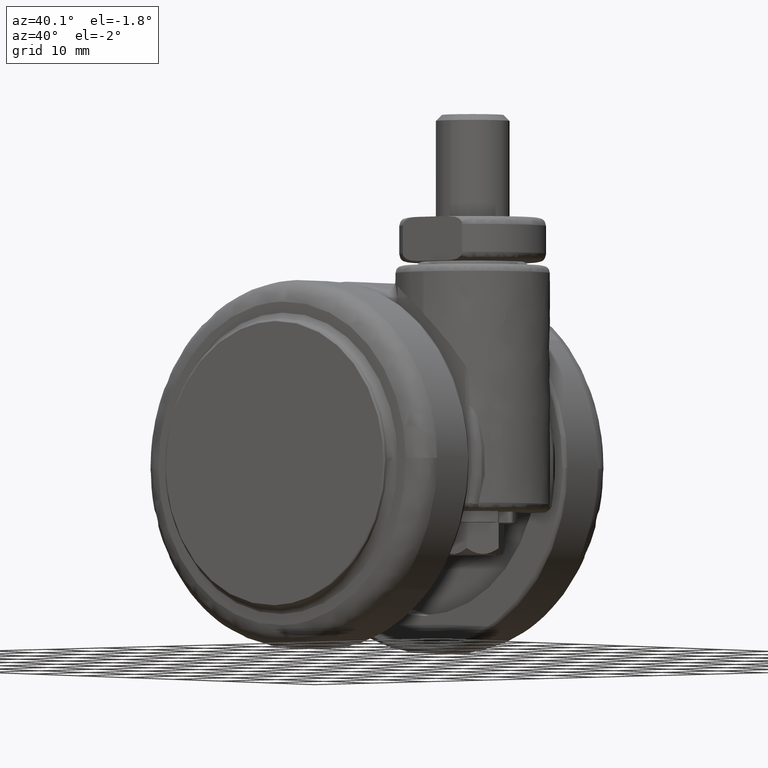
[diagram: clean part render]
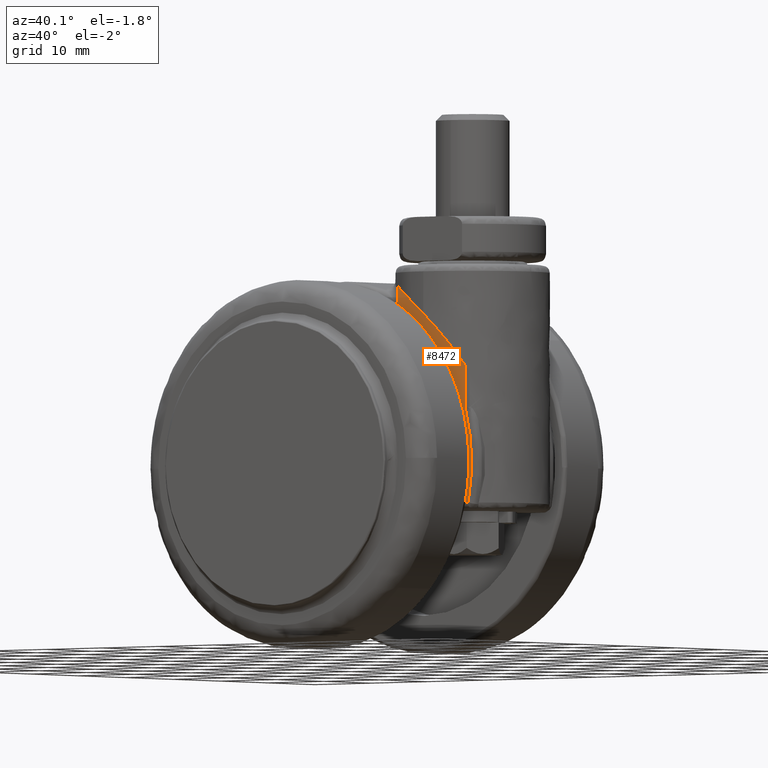
[diagram: same view with one face highlighted and labeled with its STEP entity id]
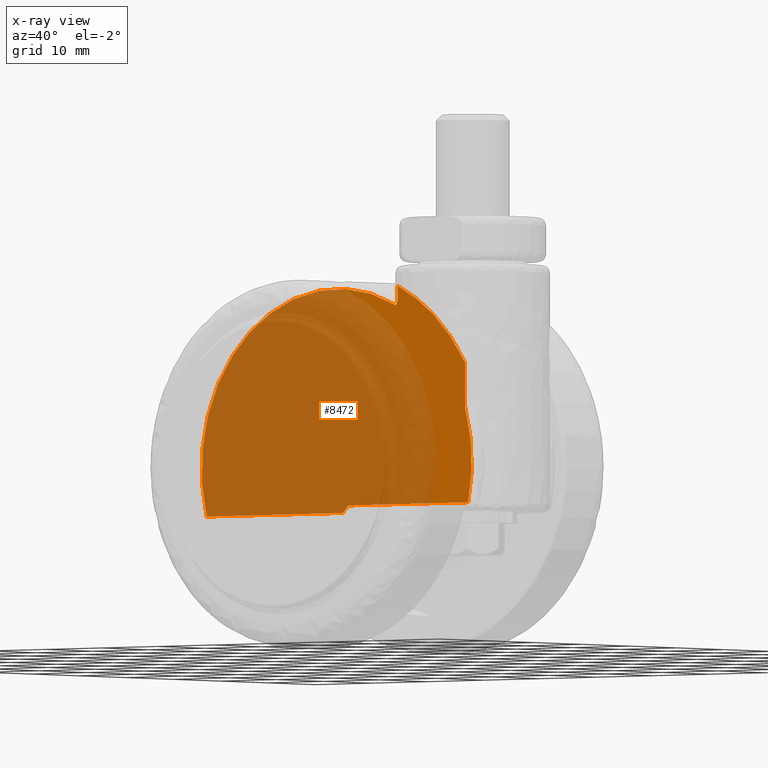
[diagram: x-ray of the same camera — body ghosted, the highlighted face saturated]
A machine part, auxiliary view. The second image highlights one B-rep face of the part: STEP entity #8472.
The next image is the same camera in x-ray: the body ghosted, the highlighted face saturated — about 83% of this face is hidden behind the body in this view.
In plain terms, the highlighted face is a freeform B-spline surface patch.
Its self-contained STEP definition (entity closure, byte-faithful):
#6904=CARTESIAN_POINT('',(10.835585997031000,-8.500000000000000,22.640273696058902));
#6905=VERTEX_POINT('',#6904);
#6931=CARTESIAN_POINT('',(10.835585997030799,-8.500000000000000,24.183466999190799));
#6932=VERTEX_POINT('',#6931);
#6933=CARTESIAN_POINT('',(10.835585997030799,-8.500000000000000,24.183466999190799));
#6934=CARTESIAN_POINT('',(10.835585997031000,-8.500000000000000,22.640273696058902));
#6935=QUASI_UNIFORM_CURVE('',1,(#6933,#6934),.UNSPECIFIED.,.F.,.U.);
#6936=EDGE_CURVE('',#6932,#6905,#6935,.T.);
#7318=CARTESIAN_POINT('',(23.361292772447349,-8.500000000000000,-5.500000000000000));
#7319=VERTEX_POINT('',#7318);
#7347=CARTESIAN_POINT('',(22.830951894845299,-8.500000000000000,7.399164518731811));
#7348=VERTEX_POINT('',#7347);
#7362=CARTESIAN_POINT('',(23.361292772447339,-8.500000000000000,-5.499999999999990));
#7363=CARTESIAN_POINT('',(24.897165414359868,-8.500000000000000,1.023630990711069));
#7364=CARTESIAN_POINT('',(22.830951894845299,-8.500000000000000,7.399164518731801));
#7372=(BOUNDED_CURVE()B_SPLINE_CURVE(2,(#7362,#7363,#7364),.UNSPECIFIED.,.F.,.U.)CURVE()GEOMETRIC_REPRESENTATION_ITEM()QUASI_UNIFORM_CURVE()RATIONAL_B_SPLINE_CURVE((1.0,0.963151451001386,1.0))REPRESENTATION_ITEM(''));
#7373=EDGE_CURVE('',#7319,#7348,#7372,.T.);
#7392=CARTESIAN_POINT('',(22.830951894845299,-8.500000000000000,13.453536173633299));
#7393=VERTEX_POINT('',#7392);
#7405=CARTESIAN_POINT('',(22.830951894845299,-8.500000000000000,7.399164518731811));
#7406=CARTESIAN_POINT('',(22.830951894845299,-8.500000000000000,13.453536173633299));
#7407=QUASI_UNIFORM_CURVE('',1,(#7405,#7406),.UNSPECIFIED.,.F.,.U.);
#7408=EDGE_CURVE('',#7348,#7393,#7407,.T.);
#7578=CARTESIAN_POINT('',(10.519259301592101,-8.500000000000000,21.571860924497649));
#7579=VERTEX_POINT('',#7578);
#7609=CARTESIAN_POINT('',(10.835585997031020,-8.500000000000000,22.640273696058902));
#7610=CARTESIAN_POINT('',(10.835585997031240,-8.500000000000000,22.545086666580278));
#7611=CARTESIAN_POINT('',(10.830241689083790,-8.500000000000000,22.450814754668809));
#7612=CARTESIAN_POINT('',(10.807722496923899,-8.500000000000000,22.264296706357950));
#7613=CARTESIAN_POINT('',(10.790582250077900,-8.499999999999998,22.172044638926391));
#7614=CARTESIAN_POINT('',(10.754086789711160,-8.499999999999998,22.035513292402548));
#7615=CARTESIAN_POINT('',(10.740111076203799,-8.499999999999998,21.990312869728520));
#7616=CARTESIAN_POINT('',(10.707928924108399,-8.500000000000000,21.900636460711841));
#7617=CARTESIAN_POINT('',(10.689723438152500,-8.500000000000000,21.856246465235291));
#7618=CARTESIAN_POINT('',(10.649217735745440,-8.500000000000000,21.770318398786301));
#7619=CARTESIAN_POINT('',(10.626847344308009,-8.500000000000002,21.728545824032569));
#7620=CARTESIAN_POINT('',(10.589531860306151,-8.500000000000000,21.668002511290059));
#7621=CARTESIAN_POINT('',(10.576463655569530,-8.500000000000000,21.648175720686378));
#7622=CARTESIAN_POINT('',(10.555801242226330,-8.500000000000002,21.619032015800350));
#7623=CARTESIAN_POINT('',(10.548736710228280,-8.500000000000000,21.609417072856299));
#7624=CARTESIAN_POINT('',(10.534228568102449,-8.500000000000000,21.590400479656338));
#7625=CARTESIAN_POINT('',(10.526676076427210,-8.499999999999998,21.580945536070161));
#7626=CARTESIAN_POINT('',(10.519259301592060,-8.500000000000000,21.571860924497550));
#7627=B_SPLINE_CURVE_WITH_KNOTS('',3,(#7609,#7610,#7611,#7612,#7613,#7614,#7615,#7616,#7617,#7618,#7619,#7620,#7621,#7622,#7623,#7624,#7625,#7626),.UNSPECIFIED.,.F.,.U.,(4,2,2,2,2,2,2,2,4),(0.0,0.250000000000006,0.500000000000012,0.625000000000011,0.750000000000010,0.875000000000009,0.937500000000006,0.968750000000003,1.0),.UNSPECIFIED.);
#7628=EDGE_CURVE('',#6905,#7579,#7627,.T.);
#8019=CARTESIAN_POINT('',(-23.103030104295851,-8.500000000000000,-6.500000000000000));
#8020=VERTEX_POINT('',#8019);
#8043=CARTESIAN_POINT('',(1.085786437626944,-8.500000000000000,-6.500000000000000));
#8044=VERTEX_POINT('',#8043);
#8056=CARTESIAN_POINT('',(-23.103030104295851,-8.500000000000000,-6.500000000000000));
#8057=CARTESIAN_POINT('',(1.085786437626944,-8.500000000000000,-6.500000000000000));
#8058=QUASI_UNIFORM_CURVE('',1,(#8056,#8057),.UNSPECIFIED.,.F.,.U.);
#8059=EDGE_CURVE('',#8020,#8044,#8058,.T.);
#8141=CARTESIAN_POINT('',(10.519259301592101,-8.500000000000000,21.571860924497649));
#8142=CARTESIAN_POINT('',(9.098836967635966,-8.499999999999925,22.264752211343509));
#8143=CARTESIAN_POINT('',(6.831202363217058,-8.500000000000094,23.104843648390428));
#8144=CARTESIAN_POINT('',(3.732131231897622,-8.499999999999938,23.747573308154038));
#8145=CARTESIAN_POINT('',(0.692762453671123,-8.500000000000084,24.070366632587930));
#8146=CARTESIAN_POINT('',(-2.804129304943758,-8.499999999999938,23.953432822851500));
#8147=CARTESIAN_POINT('',(-6.438149307619815,-8.500000000000076,23.201338780290008));
#8148=CARTESIAN_POINT('',(-9.115082003383813,-8.499999999999840,22.244635589104899));
#8149=CARTESIAN_POINT('',(-11.486849382599789,-8.500000000000052,21.122242520181199));
#8150=CARTESIAN_POINT('',(-14.133541839783559,-8.499999999999995,19.516873254618229));
#8151=CARTESIAN_POINT('',(-16.753545615686800,-8.499999999999981,17.309393423929020));
#8152=CARTESIAN_POINT('',(-18.775662821106700,-8.500000000000057,15.015055456231130));
#8153=CARTESIAN_POINT('',(-20.282723536538800,-8.499999999999904,12.910558088267910));
#8154=CARTESIAN_POINT('',(-21.726467923772180,-8.500000000000094,10.378514241626640));
#8155=CARTESIAN_POINT('',(-22.899575773720041,-8.499999999999723,7.432946225059952));
#8156=CARTESIAN_POINT('',(-23.615337945327440,-8.500000000000021,4.533682456655741));
#8157=CARTESIAN_POINT('',(-23.976512911096439,-8.500000000000021,1.860821085168632));
#8158=CARTESIAN_POINT('',(-24.035128325313821,-8.499999999999993,-0.549402055917581));
#8159=CARTESIAN_POINT('',(-23.814734672778140,-8.500000000000007,-3.416749578301282));
#8160=CARTESIAN_POINT('',(-23.443587801894651,-8.500000000000002,-5.289863982508392));
#8161=CARTESIAN_POINT('',(-23.103030104295851,-8.500000000000000,-6.500000000000000));
#8162=B_SPLINE_CURVE_WITH_KNOTS('',3,(#8141,#8142,#8143,#8144,#8145,#8146,#8147,#8148,#8149,#8150,#8151,#8152,#8153,#8154,#8155,#8156,#8157,#8158,#8159,#8160,#8161),.UNSPECIFIED.,.F.,.U.,(4,1,1,1,1,1,1,1,1,1,1,1,1,1,1,1,1,1,4),(0.000000068673756,4.741175058107586,7.219558814818974,9.482394939006639,13.900352157809740,17.671779188642791,20.581161851944689,22.412971414084669,25.537864577924349,29.848017827207791,32.649651482567187,34.696976417954012,37.606362794445261,41.377789758330131,44.179420622980608,46.550029132132920,49.459393720301733,51.398975466437363,55.170385657455078),.UNSPECIFIED.);
#8163=EDGE_CURVE('',#7579,#8020,#8162,.T.);
#8413=CARTESIAN_POINT('',(22.830951894845299,-8.500000000000000,13.453536173633299));
#8414=CARTESIAN_POINT('',(18.543147993956090,-8.500000000000000,20.730035328375156));
#8415=CARTESIAN_POINT('',(10.835585997030799,-8.500000000000000,24.183466999190792));
#8423=(BOUNDED_CURVE()B_SPLINE_CURVE(2,(#8413,#8414,#8415),.UNSPECIFIED.,.F.,.U.)CURVE()GEOMETRIC_REPRESENTATION_ITEM()QUASI_UNIFORM_CURVE()RATIONAL_B_SPLINE_CURVE((1.0,0.952779707509432,1.0))REPRESENTATION_ITEM(''));
#8424=EDGE_CURVE('',#7393,#6932,#8423,.T.);
#8446=CARTESIAN_POINT('',(-26.384489498479230,-8.500000000000000,25.716106116329868));
#8447=CARTESIAN_POINT('',(26.396689010504922,-8.500000000000000,25.716106116329868));
#8448=CARTESIAN_POINT('',(-26.384489498479230,-8.500000000000000,-8.032639940133791));
#8449=CARTESIAN_POINT('',(26.396689010504922,-8.500000000000000,-8.032639940133791));
#8450=B_SPLINE_SURFACE_WITH_KNOTS('',1,1,((#8446,#8448),(#8447,#8449)),.UNSPECIFIED.,.F.,.F.,.U.,(2,2),(2,2),(0.0,52.781178508984141),(0.0,33.748746056463659),.UNSPECIFIED.);
#8451=CARTESIAN_POINT('',(2.085786437627060,-8.500000000000000,-5.500000000000000));
#8452=VERTEX_POINT('',#8451);
#8453=CARTESIAN_POINT('',(2.085786437627060,-8.500000000000000,-5.500000000000000));
#8454=CARTESIAN_POINT('',(23.361292772447349,-8.500000000000000,-5.500000000000000));
#8455=QUASI_UNIFORM_CURVE('',1,(#8453,#8454),.UNSPECIFIED.,.F.,.U.);
#8456=EDGE_CURVE('',#8452,#7319,#8455,.T.);
#8457=ORIENTED_EDGE('',*,*,#8456,.T.);
#8458=ORIENTED_EDGE('',*,*,#7373,.T.);
#8459=ORIENTED_EDGE('',*,*,#7408,.T.);
#8460=ORIENTED_EDGE('',*,*,#8424,.T.);
#8461=ORIENTED_EDGE('',*,*,#6936,.T.);
#8462=ORIENTED_EDGE('',*,*,#7628,.T.);
#8463=ORIENTED_EDGE('',*,*,#8163,.T.);
#8464=ORIENTED_EDGE('',*,*,#8059,.T.);
#8465=CARTESIAN_POINT('',(1.085786437626944,-8.500000000000000,-6.500000000000000));
#8466=CARTESIAN_POINT('',(2.085786437627060,-8.500000000000000,-5.500000000000000));
#8467=QUASI_UNIFORM_CURVE('',1,(#8465,#8466),.UNSPECIFIED.,.F.,.U.);
#8468=EDGE_CURVE('',#8044,#8452,#8467,.T.);
#8469=ORIENTED_EDGE('',*,*,#8468,.T.);
#8470=EDGE_LOOP('',(#8457,#8458,#8459,#8460,#8461,#8462,#8463,#8464,#8469));
#8471=FACE_OUTER_BOUND('',#8470,.T.);
#8472=ADVANCED_FACE('',(#8471),#8450,.F.);